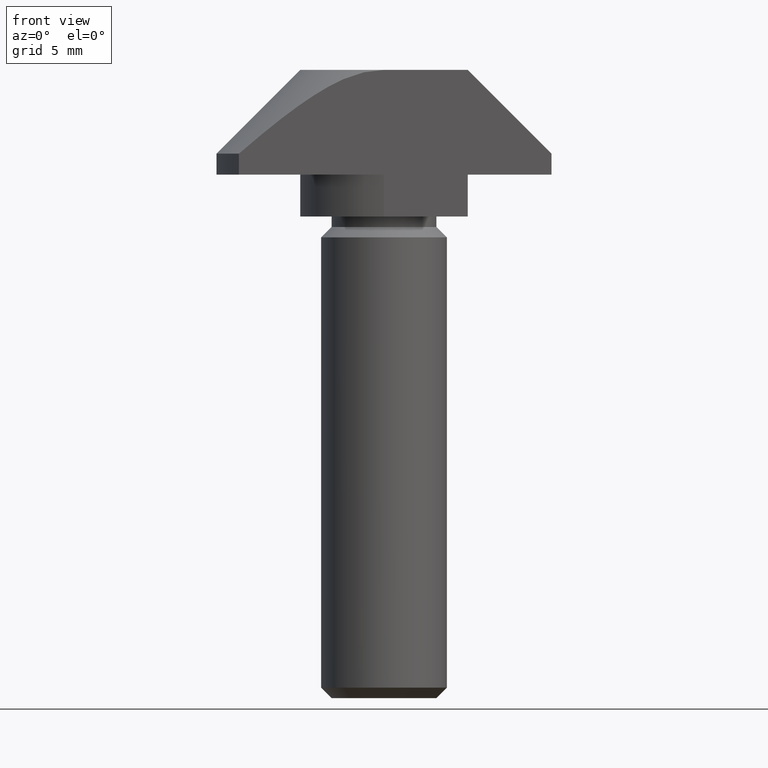
[diagram: clean part render]
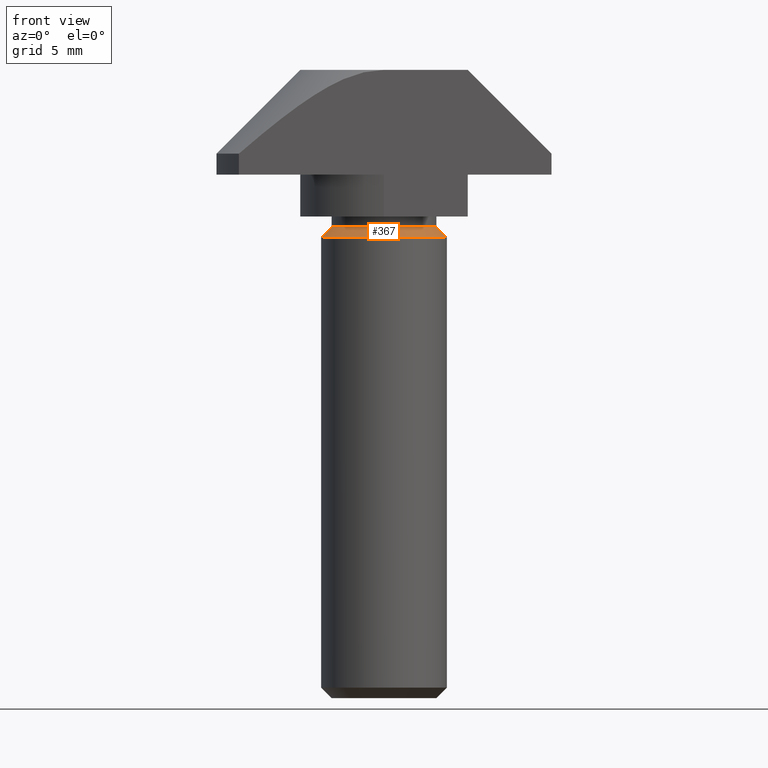
[diagram: same view with one face highlighted and labeled with its STEP entity id]
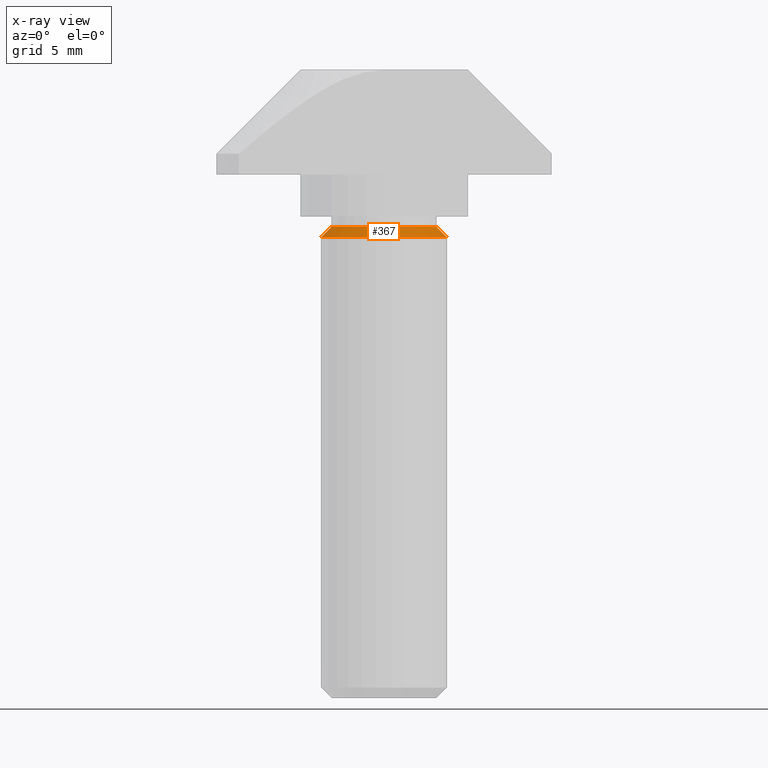
[diagram: x-ray of the same camera — body ghosted, the highlighted face saturated]
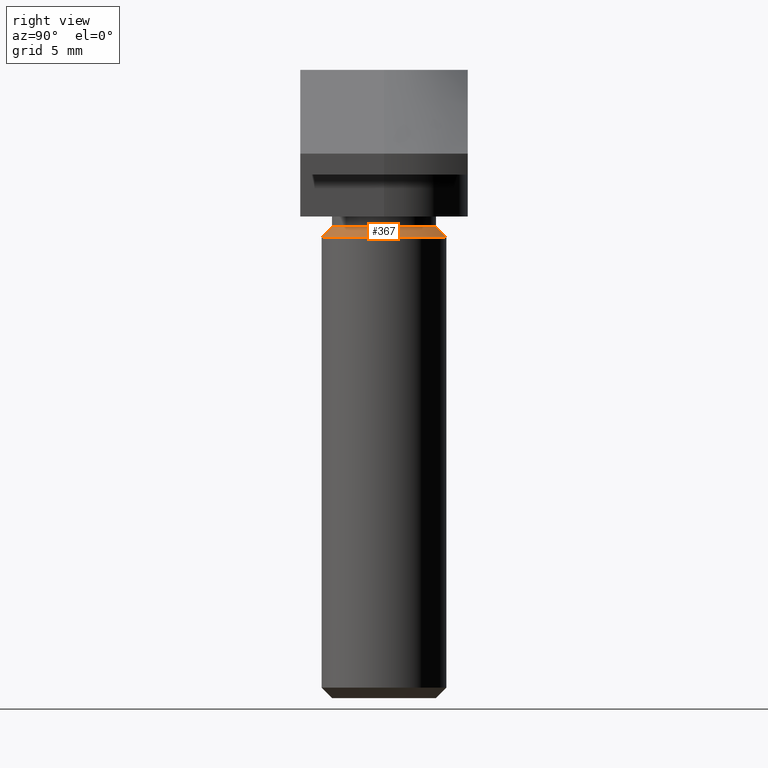
[diagram: same view with one face highlighted and labeled with its STEP entity id]
A machine part, front view. The second image highlights one B-rep face of the part: STEP entity #367.
The next image is the same camera in x-ray: the body ghosted, the highlighted face saturated — about 0% of this face is hidden behind the body in this view.
A second angle (right view) of the same face is appended — the face is thin or edge-on in the first view.
In plain terms, the highlighted conical surface has half-angle 45 deg.
Its self-contained STEP definition (entity closure, byte-faithful):
#104=FACE_BOUND('',#133,.T.);
#109=FACE_OUTER_BOUND('',#132,.T.);
#132=EDGE_LOOP('',(#261));
#133=EDGE_LOOP('',(#262));
#160=CIRCLE('',#393,3.);
#161=CIRCLE('',#394,2.5);
#175=VERTEX_POINT('',#544);
#176=VERTEX_POINT('',#546);
#210=EDGE_CURVE('',#175,#175,#160,.T.);
#211=EDGE_CURVE('',#176,#176,#161,.T.);
#261=ORIENTED_EDGE('',*,*,#210,.T.);
#262=ORIENTED_EDGE('',*,*,#211,.T.);
#363=CONICAL_SURFACE('',#392,2.75,45.);
#367=ADVANCED_FACE('',(#109,#104),#363,.T.);
#392=AXIS2_PLACEMENT_3D('',#543,#432,#433);
#393=AXIS2_PLACEMENT_3D('',#545,#434,#435);
#394=AXIS2_PLACEMENT_3D('',#547,#436,#437);
#432=DIRECTION('center_axis',(0.,0.,-1.));
#433=DIRECTION('ref_axis',(1.,0.,0.));
#434=DIRECTION('center_axis',(0.,0.,1.));
#435=DIRECTION('ref_axis',(1.,0.,0.));
#436=DIRECTION('center_axis',(0.,0.,-1.));
#437=DIRECTION('ref_axis',(1.,0.,0.));
#543=CARTESIAN_POINT('Origin',(0.,0.,-7.75));
#544=CARTESIAN_POINT('',(-3.,-3.67394039744206E-16,-8.));
#545=CARTESIAN_POINT('Origin',(0.,0.,-8.));
#546=CARTESIAN_POINT('',(-2.5,3.06161699786838E-16,-7.5));
#547=CARTESIAN_POINT('Origin',(0.,0.,-7.5));